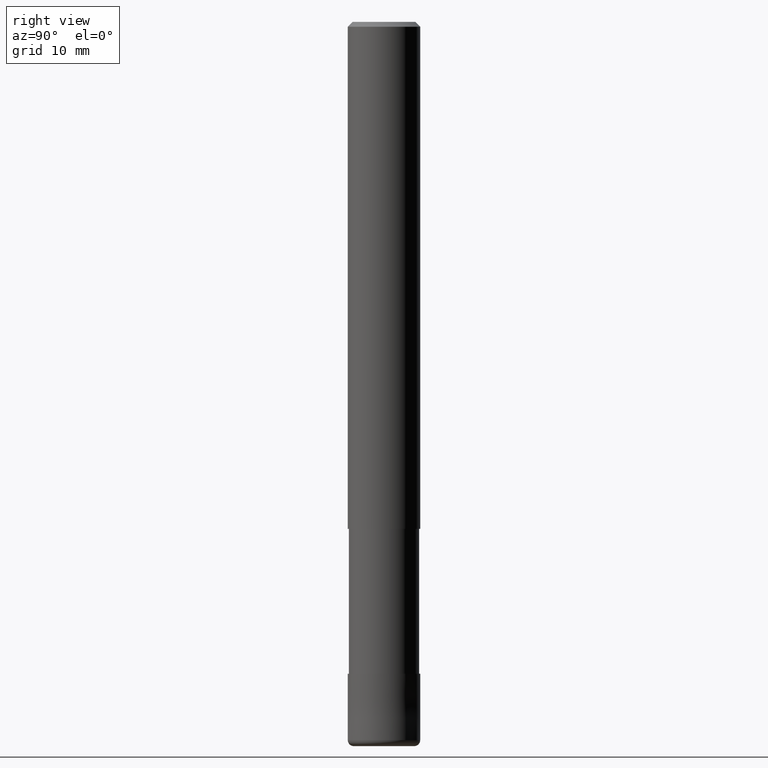
[diagram: clean part render]
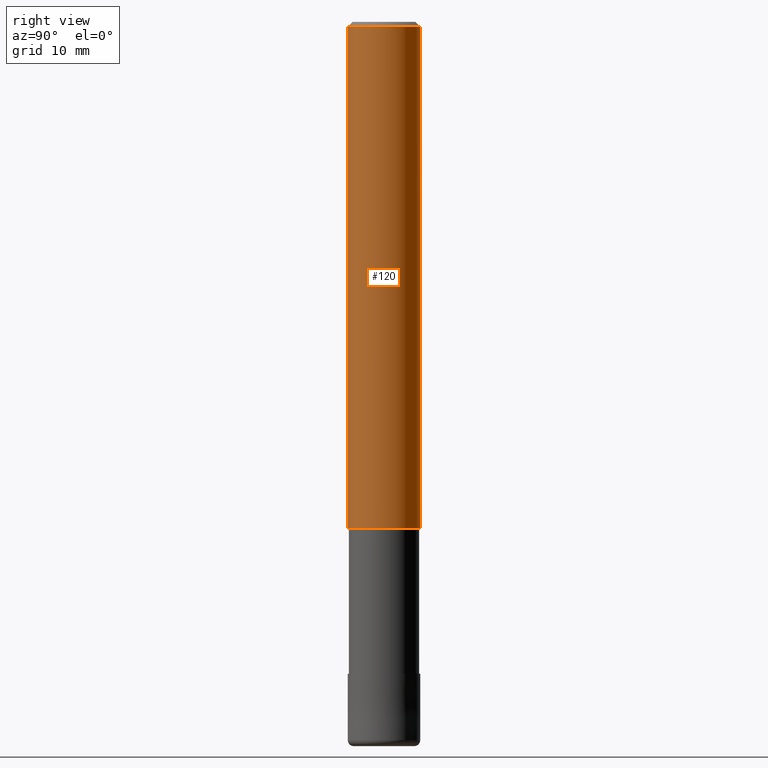
[diagram: same view with one face highlighted and labeled with its STEP entity id]
A machine part, right view. The second image highlights one B-rep face of the part: STEP entity #120.
In plain terms, the highlighted cylindrical surface (edge-blend (fillet) strip) has radius 3 mm, axis along (-0, -0, 1).
Its self-contained STEP definition (entity closure, byte-faithful):
#96=EDGE_CURVE('',#150,#166,#233,.T.);
#108=VERTEX_POINT('',#246);
#120=ADVANCED_FACE('',(#259),#260,.T.);
#150=VERTEX_POINT('',#294);
#164=VERTEX_POINT('',#309);
#166=VERTEX_POINT('',#311);
#168=EDGE_CURVE('',#108,#164,#313,.T.);
#170=EDGE_CURVE('',#108,#150,#315,.T.);
#182=EDGE_CURVE('',#166,#164,#332,.T.);
#233=CIRCLE('',#380,3.0);
#246=CARTESIAN_POINT('',(0.0,3.0,-0.399999999999999));
#259=FACE_OUTER_BOUND('',#415,.T.);
#260=CYLINDRICAL_SURFACE('',#416,3.0);
#294=CARTESIAN_POINT('',(0.0,3.0,-42.0));
#309=CARTESIAN_POINT('',(3.67381906146713E-016,-3.0,-0.399999999999999));
#311=CARTESIAN_POINT('',(3.67381906146713E-016,-3.0,-42.0));
#313=CIRCLE('',#476,3.0);
#315=LINE('',#479,#480);
#332=LINE('',#499,#500);
#380=AXIS2_PLACEMENT_3D('',#543,#544,#545);
#415=EDGE_LOOP('',(#580,#581,#582,#583));
#416=AXIS2_PLACEMENT_3D('',#584,#585,#586);
#476=AXIS2_PLACEMENT_3D('',#646,#647,#648);
#479=CARTESIAN_POINT('',(-3.67381906146713E-016,3.0,-21.2));
#480=VECTOR('',#649,1.0);
#499=CARTESIAN_POINT('',(3.67381906146713E-016,-3.0,-21.2));
#500=VECTOR('',#681,1.0);
#543=CARTESIAN_POINT('',(0.0,0.0,-42.0));
#544=DIRECTION('',(0.0,0.0,-1.0));
#545=DIRECTION('',(0.0,1.0,0.0));
#580=ORIENTED_EDGE('',*,*,#170,.F.);
#581=ORIENTED_EDGE('',*,*,#168,.T.);
#582=ORIENTED_EDGE('',*,*,#182,.F.);
#583=ORIENTED_EDGE('',*,*,#96,.F.);
#584=CARTESIAN_POINT('',(0.0,0.0,-21.2));
#585=DIRECTION('',(-0.0,-0.0,1.0));
#586=DIRECTION('',(0.0,1.0,0.0));
#646=CARTESIAN_POINT('',(0.0,0.0,-0.399999999999999));
#647=DIRECTION('',(0.0,0.0,-1.0));
#648=DIRECTION('',(0.0,1.0,0.0));
#649=DIRECTION('',(0.0,0.0,-1.0));
#681=DIRECTION('',(-0.0,-0.0,1.0));